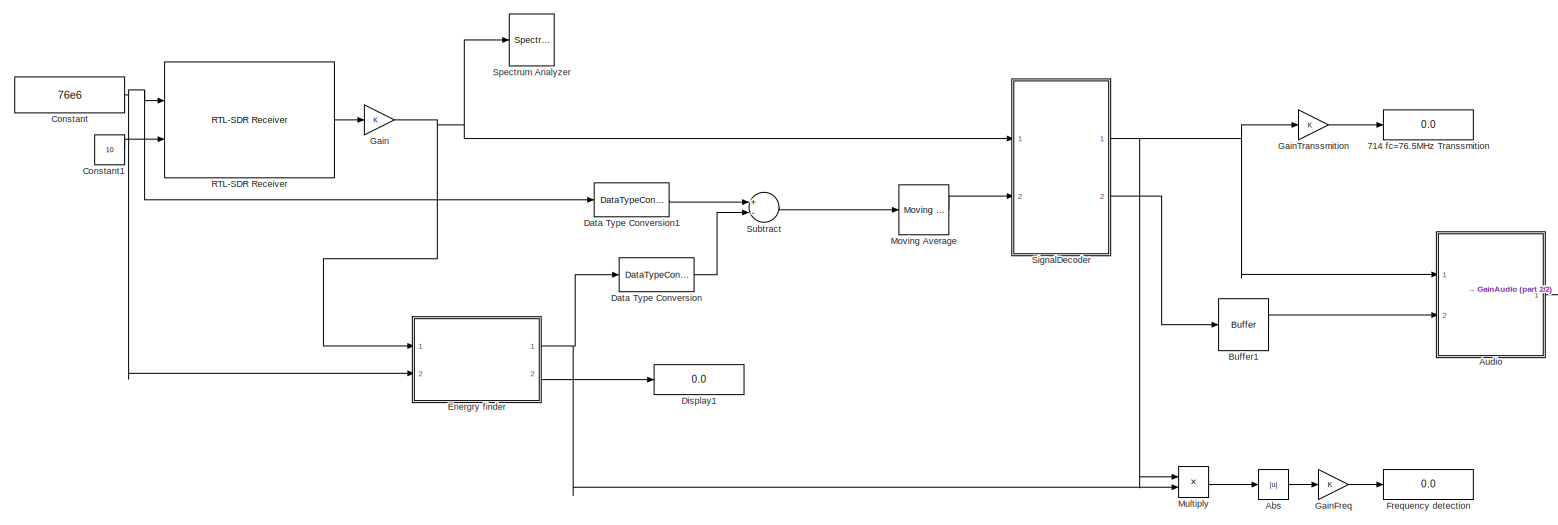
[diagram: root canvas - part 1/2, most of the canvas]
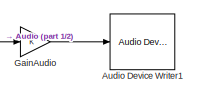
[diagram: root canvas - part 2/2, middle right region]
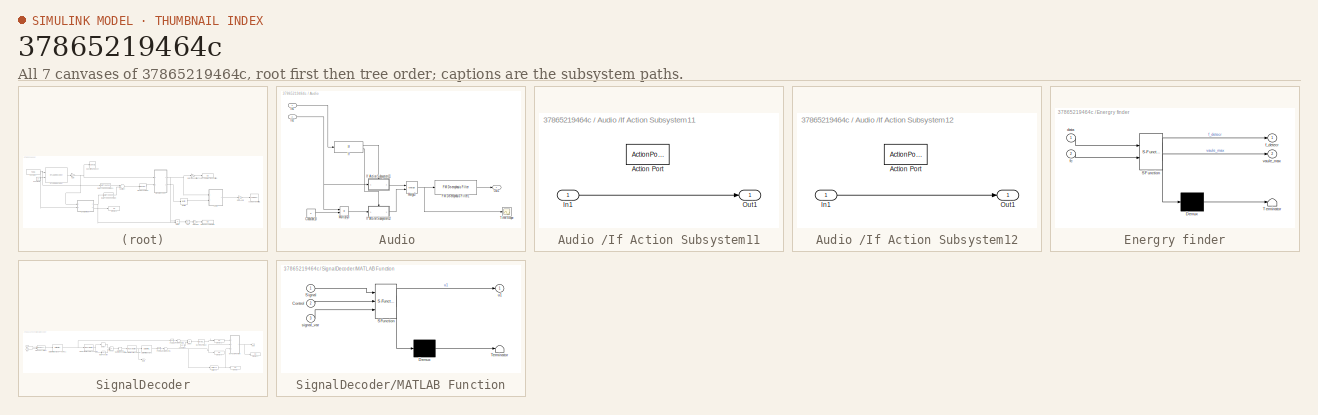
[diagram: thumbnail index - all 7 canvases of the model, root first then tree order]
MODEL slx_37865219464c
KIND model
CONFIG AbsTol = auto
CONFIG EnableMultiTasking = off
CONFIG FixedStep = auto
CONFIG MaxStep = auto
CONFIG MinStep = auto
CONFIG RelTol = 1e-3
CONFIG SampleTimeConstraint = Unconstrained
CONFIG Solver = VariableStepAuto
CONFIG SolverName = VariableStepAuto
CONFIG StartFcn = localAddEventListener
CONFIG StartTime = 0.0
CONFIG StopTime = inf
BLOCK [Display] 714 fc=76.5MHz Transsmition
  Decimation = 1
  Ports = [1]
BLOCK [Abs] Abs
  SaturateOnIntegerOverflow = off
BLOCK [SubSystem] Audio 
  Commented = on
  Ports = [2, 1]
  RequestExecContextInheritance = off
BLOCK [Constant] Audio /Constant10
  OutDataTypeStr = single
  Value = 0
BLOCK [Reference] Audio /FM De-emphasis Filter1  REF=rtlsdr_book_library/FM Demod Tools/FM De-emphasis Filter  (lib defined in slx_12414fe83126, slx_a1558d2e1022)
  Ports = [1, 1]
  SourceBlock = rtlsdr_book_library/FM Demod Tools/FM De-emphasis Filter
  SourceProductName = RTL-SDR Book Library
BLOCK [If] Audio /If
  IfExpression = u1 == 1
  Ports = [1, 2]
BLOCK [SubSystem] Audio /If Action Subsystem11
  Ports = [1, 1, 0, 0, 0, 0, 0, 1]
  RequestExecContextInheritance = off
  TreatAsAtomicUnit = on
BLOCK [ActionPort] Audio /If Action Subsystem11/Action Port
  ActionType = then
BLOCK [Inport] Audio /If Action Subsystem11/In1
  IconDisplay = Port number
BLOCK [Outport] Audio /If Action Subsystem11/Out1
  IconDisplay = Port number
BLOCK [SubSystem] Audio /If Action Subsystem12
  Ports = [1, 1, 0, 0, 0, 0, 0, 1]
  RequestExecContextInheritance = off
  TreatAsAtomicUnit = on
BLOCK [ActionPort] Audio /If Action Subsystem12/Action Port
  ActionType = else
BLOCK [Inport] Audio /If Action Subsystem12/In1
  IconDisplay = Port number
BLOCK [Outport] Audio /If Action Subsystem12/Out1
  IconDisplay = Port number
BLOCK [Inport] Audio /In1
  IconDisplay = Port number
BLOCK [Inport] Audio /In2
  IconDisplay = Port number
  Port = 2
BLOCK [Merge] Audio /Merge5
  Ports = [2, 1]
BLOCK [Product] Audio /Multiply3
  InputSameDT = off
  OutDataTypeStr = Inherit: Inherit via internal rule
  Ports = [2, 1]
  RndMeth = Floor
  SaturateOnIntegerOverflow = off
BLOCK [Outport] Audio /Out1
  IconDisplay = Port number
BLOCK [Scope] Audio /Time Scope
  Commented = on
  DefaultConfigurationName = spbscopes.TimeScopeBlockCfg
  Floating = off
  NumInputPorts = 1
  Ports = [1]
  ScopeSpecificationString = spbscopes.TimeScopeBlockCfg('CurrentConfiguration', extmgr.ConfigurationSet(extmgr.Configuration('Core','General UI',true,'FigureColor',[0.156862745098039 0.156862745098039 0.156862745098039]),extmgr.Configuration('Core','Source UI',true),extmgr.Configuration('Sources','WiredSimulink',true),extmgr.Configuration('Visuals','Time Domain',true,'DisplayPropertyDefaults',struct('MinYLimReal','-3.60653',...<+1539ch>
  UserDataPersistent = on
BLOCK [Reference] Audio Device Writer1  REF=dspsnks4/Audio Device
Writer
  Commented = on
  Ports = [1]
  SourceBlock = dspsnks4/Audio Device\nWriter
  SourceProductBaseCode = DS
  SourceProductName = DSP System Toolbox
  SourceType = Audio Device Writer
BLOCK [Buffer] Buffer1
  N = 80
  OutputFrames = off
BLOCK [Constant] Constant
  Value = 76e6
BLOCK [Constant] Constant1
  Value = 10
BLOCK [DataTypeConversion] Data Type Conversion
  OutDataTypeStr = single
  RndMeth = Floor
  SaturateOnIntegerOverflow = off
BLOCK [DataTypeConversion] Data Type Conversion1
  OutDataTypeStr = single
  RndMeth = Floor
  SaturateOnIntegerOverflow = off
BLOCK [Display] Display1
  Decimation = 1
  Ports = [1]
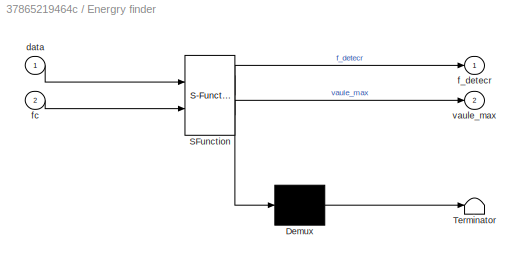
BLOCK [SubSystem] Energry finder
  ErrorFcn = Stateflow.Translate.translate
  PermitHierarchicalResolution = ExplicitOnly
  Ports = [2, 2]
  RequestExecContextInheritance = off
  SFBlockType = MATLAB Function
  TreatAsAtomicUnit = on
BLOCK [Demux] Energry finder/ Demux 
  Outputs = 1
  Ports = [1, 1]
BLOCK [S-Function] Energry finder/ SFunction 
  EnableBusSupport = on
  FunctionName = sf_sfun
  PortCounts = [2 3]
  Ports = [2, 3]
  SFcnIsStateOwnerBlock = off
  SFunctionDeploymentMode = off
  Tag = Stateflow S-Function signal_detector_V2 2
BLOCK [Terminator] Energry finder/ Terminator 
BLOCK [Inport] Energry finder/data
  IconDisplay = Port number
BLOCK [Outport] Energry finder/f_detecr
  IconDisplay = Port number
BLOCK [Inport] Energry finder/fc
  IconDisplay = Port number
  Port = 2
BLOCK [Outport] Energry finder/vaule_max
  IconDisplay = Port number
  Port = 2
BLOCK [Display] Frequency detection
  Decimation = 1
  Ports = [1]
BLOCK [Gain] Gain
  OutDataTypeStr = Inherit: Inherit via internal rule
  ParamDataTypeStr = Inherit: Inherit via internal rule
  SaturateOnIntegerOverflow = off
BLOCK [Gain] GainAudio
  Commented = on
  OutDataTypeStr = Inherit: Inherit via internal rule
  ParamDataTypeStr = Inherit: Inherit via internal rule
  SaturateOnIntegerOverflow = off
BLOCK [Gain] GainFreq
  OutDataTypeStr = Inherit: Inherit via internal rule
  ParamDataTypeStr = Inherit: Inherit via internal rule
  SaturateOnIntegerOverflow = off
BLOCK [Gain] GainTranssmition
  OutDataTypeStr = Inherit: Inherit via internal rule
  ParamDataTypeStr = Inherit: Inherit via internal rule
  SaturateOnIntegerOverflow = off
BLOCK [Reference] Moving Average  REF=dspstat3/Moving
Average
  Ports = [1, 1]
  SourceBlock = dspstat3/Moving\nAverage
  SourceProductBaseCode = DS
  SourceProductName = DSP System Toolbox
  SourceType = dsp.simulink.MovingAverage
BLOCK [Product] Multiply
  InputSameDT = off
  OutDataTypeStr = Inherit: Inherit via internal rule
  Ports = [2, 1]
  RndMeth = Floor
  SaturateOnIntegerOverflow = off
BLOCK [Reference] RTL-SDR Receiver  REF=sdrrlib/RTL-SDR
Receiver
  Ports = [2, 1]
  SourceBlock = sdrrlib/RTL-SDR\nReceiver
  SourceProductBaseCode = RTLSDR
  SourceProductName = Communications System Toolbox Support Package for RTL-SDR Radio
  SourceType = RTL-SDR Receiver
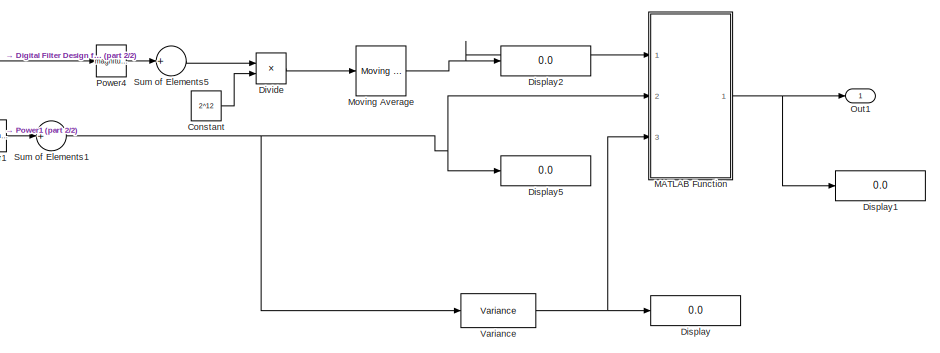
[diagram: SignalDecoder - part 1/2, right side, full height]
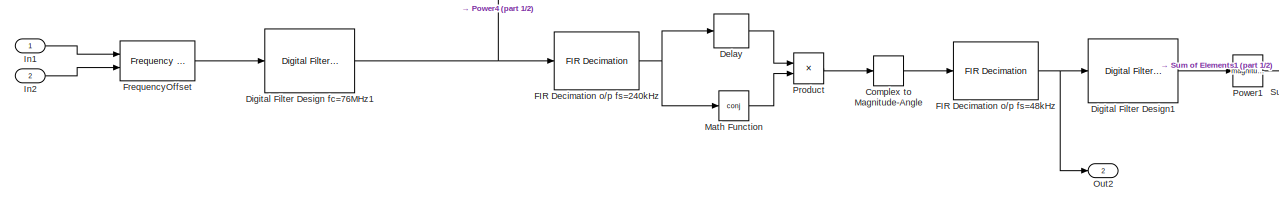
[diagram: SignalDecoder - part 2/2, middle left region]
BLOCK [SubSystem] SignalDecoder
  Ports = [2, 2]
  RequestExecContextInheritance = off
BLOCK [ComplexToMagnitudeAngle] SignalDecoder/Complex to Magnitude-Angle
  Output = Angle
  Ports = [1, 1]
BLOCK [Constant] SignalDecoder/Constant
  Value = 2^12
BLOCK [Delay] SignalDecoder/Delay
  DelayLength = 1
  InputPortMap = u0
  InputProcessing = Columns as channels (frame based)
  Ports = [1, 1]
BLOCK [Reference] SignalDecoder/Digital Filter Design fc=76MHz1  REF=dsparch4/Digital
Filter Design
  Ports = [1, 1]
  SourceBlock = dsparch4/Digital\nFilter Design
  SourceProductBaseCode = DS
  SourceProductName = DSP System Toolbox
  SourceType = Digital Filter Design
  UserDataPersistent = on
BLOCK [Reference] SignalDecoder/Digital Filter Design1  REF=dsparch4/Digital
Filter Design
  Ports = [1, 1]
  SourceBlock = dsparch4/Digital\nFilter Design
  SourceProductBaseCode = DS
  SourceProductName = DSP System Toolbox
  SourceType = Digital Filter Design
  UserDataPersistent = on
BLOCK [Display] SignalDecoder/Display
  Decimation = 1
  Ports = [1]
BLOCK [Display] SignalDecoder/Display1
  Decimation = 1
  Ports = [1]
BLOCK [Display] SignalDecoder/Display2
  Decimation = 1
  Ports = [1]
BLOCK [Display] SignalDecoder/Display5
  Decimation = 1
  Ports = [1]
BLOCK [Product] SignalDecoder/Divide
  InputSameDT = off
  Inputs = */
  OutDataTypeStr = Inherit: Inherit via internal rule
  Ports = [2, 1]
  RndMeth = Floor
  SaturateOnIntegerOverflow = off
BLOCK [Reference] SignalDecoder/FIR Decimation o//p fs=240kHz  REF=dspmlti4/FIR
Decimation
  Ports = [1, 1]
  SourceBlock = dspmlti4/FIR\nDecimation
  SourceProductBaseCode = DS
  SourceProductName = DSP System Toolbox
  SourceType = FIR Decimation
  UserDataPersistent = on
BLOCK [Reference] SignalDecoder/FIR Decimation o//p fs=48kHz  REF=dspmlti4/FIR
Decimation
  Ports = [1, 1]
  SourceBlock = dspmlti4/FIR\nDecimation
  SourceProductBaseCode = DS
  SourceProductName = DSP System Toolbox
  SourceType = FIR Decimation
  UserDataPersistent = on
BLOCK [Reference] SignalDecoder/FrequencyOffset  REF=commrflib2/Phase//
Frequency
Offset
  Ports = [2, 1]
  SourceBlock = commrflib2/Phase//\nFrequency\nOffset
  SourceProductBaseCode = CM
  SourceProductName = Communications System Toolbox
  SourceType = Phase/Frequency Offset
BLOCK [Inport] SignalDecoder/In1
  IconDisplay = Port number
BLOCK [Inport] SignalDecoder/In2
  IconDisplay = Port number
  Port = 2
BLOCK [SubSystem] SignalDecoder/MATLAB Function
  ErrorFcn = Stateflow.Translate.translate
  PermitHierarchicalResolution = ExplicitOnly
  Ports = [3, 1]
  RequestExecContextInheritance = off
  SFBlockType = MATLAB Function
  TreatAsAtomicUnit = on
BLOCK [Demux] SignalDecoder/MATLAB Function/ Demux 
  Outputs = 1
  Ports = [1, 1]
BLOCK [S-Function] SignalDecoder/MATLAB Function/ SFunction 
  EnableBusSupport = on
  FunctionName = sf_sfun
  PortCounts = [3 2]
  Ports = [3, 2]
  SFcnIsStateOwnerBlock = off
  SFunctionDeploymentMode = off
  Tag = Stateflow S-Function signal_detector_V2 3
BLOCK [Terminator] SignalDecoder/MATLAB Function/ Terminator 
BLOCK [Inport] SignalDecoder/MATLAB Function/Control
  IconDisplay = Port number
  Port = 2
BLOCK [Inport] SignalDecoder/MATLAB Function/Signal
  IconDisplay = Port number
BLOCK [Inport] SignalDecoder/MATLAB Function/signal_var
  IconDisplay = Port number
  Port = 3
BLOCK [Outport] SignalDecoder/MATLAB Function/u1
  IconDisplay = Port number
BLOCK [Math] SignalDecoder/Math Function
  Operator = conj
  Ports = [1, 1]
BLOCK [Reference] SignalDecoder/Moving Average  REF=dspstat3/Moving
Average
  Ports = [1, 1]
  SourceBlock = dspstat3/Moving\nAverage
  SourceProductBaseCode = DS
  SourceProductName = DSP System Toolbox
  SourceType = dsp.simulink.MovingAverage
BLOCK [Outport] SignalDecoder/Out1
  IconDisplay = Port number
BLOCK [Outport] SignalDecoder/Out2
  IconDisplay = Port number
  Port = 2
BLOCK [Math] SignalDecoder/Power1
  Operator = magnitude^2
  Ports = [1, 1]
BLOCK [Math] SignalDecoder/Power4
  Operator = magnitude^2
  Ports = [1, 1]
BLOCK [Product] SignalDecoder/Product
  InputSameDT = off
  OutDataTypeStr = Inherit: Inherit via internal rule
  Ports = [2, 1]
  RndMeth = Floor
  SaturateOnIntegerOverflow = off
BLOCK [Sum] SignalDecoder/Sum of Elements1
  InputSameDT = off
  Inputs = +
  OutDataTypeStr = Inherit: Inherit via internal rule
  Ports = [1, 1]
  SaturateOnIntegerOverflow = off
BLOCK [Sum] SignalDecoder/Sum of Elements5
  InputSameDT = off
  Inputs = +
  OutDataTypeStr = Inherit: Inherit via internal rule
  Ports = [1, 1]
  SaturateOnIntegerOverflow = off
BLOCK [Reference] SignalDecoder/Variance  REF=dspstat3/Variance
  Ports = [1, 1]
  SourceBlock = dspstat3/Variance
  SourceProductBaseCode = DS
  SourceProductName = DSP System Toolbox
  SourceType = Variance
  UserDataPersistent = on
BLOCK [SpectrumAnalyzer] Spectrum Analyzer
  Commented = on
  Ports = [1]
  ScopeSpecificationString = spbscopes.SpectrumAnalyzerBlockCfg('CurrentConfiguration', extmgr.ConfigurationSet(extmgr.Configuration('Core','General UI',true),extmgr.Configuration('Core','Source UI',true),extmgr.Configuration('Sources','WiredSimulink',true),extmgr.Configuration('Visuals','Spectrum',true,'AxesProperties',struct('Color',{[0 0 0],[0 0 0]},'XColor',{[0.686274509803922 0.686274509803922 0.686274509803922],[0.68627...<+1748ch>
BLOCK [Sum] Subtract
  InputSameDT = off
  Inputs = +-
  OutDataTypeStr = Inherit: Inherit via internal rule
  Ports = [2, 1]
  SaturateOnIntegerOverflow = off
LINE Abs:1 -> GainFreq:1
LINE Audio /Constant10:1 -> Audio /Multiply3:2
LINE Audio /FM De-emphasis Filter1:1 -> Audio /Out1:1
LINE Audio /If Action Subsystem11/In1:1 -> Audio /If Action Subsystem11/Out1:1
LINE Audio /If Action Subsystem11:1 -> Audio /Merge5:1
LINE Audio /If Action Subsystem12/In1:1 -> Audio /If Action Subsystem12/Out1:1
LINE Audio /If Action Subsystem12:1 -> Audio /Merge5:2
LINE Audio /If:1 -> Audio /If Action Subsystem11:ifaction
LINE Audio /If:2 -> Audio /If Action Subsystem12:ifaction
LINE Audio /In1:1 -> Audio /If:1
NET Audio /In2:1 -> Audio /If Action Subsystem11:1, Audio /Multiply3:1
NET Audio /Merge5:1 -> Audio /FM De-emphasis Filter1:1, Audio /Time Scope:1
LINE Audio /Multiply3:1 -> Audio /If Action Subsystem12:1
LINE Audio :1 -> GainAudio:1
LINE Buffer1:1 -> Audio :2
LINE Constant1:1 -> RTL-SDR Receiver:2
NET Constant:1 -> Data Type Conversion1:1, Energry finder:2, RTL-SDR Receiver:1
LINE Data Type Conversion1:1 -> Subtract:1
LINE Data Type Conversion:1 -> Subtract:2
NET Energry finder:1 -> Data Type Conversion:1, Multiply:2
LINE Energry finder:2 -> Display1:1
NET Gain:1 -> Energry finder:1, SignalDecoder:1, Spectrum Analyzer:1
LINE GainAudio:1 -> Audio Device Writer1:1
LINE GainFreq:1 -> Frequency detection:1
LINE GainTranssmition:1 -> 714 fc=76.5MHz Transsmition:1
LINE Moving Average:1 -> SignalDecoder:2
LINE Multiply:1 -> Abs:1
LINE RTL-SDR Receiver:1 -> Gain:1
LINE SignalDecoder/Complex to Magnitude-Angle:1 -> SignalDecoder/FIR Decimation o//p fs=48kHz:1
LINE SignalDecoder/Constant:1 -> SignalDecoder/Divide:2
LINE SignalDecoder/Delay:1 -> SignalDecoder/Product:1
NET SignalDecoder/Digital Filter Design fc=76MHz1:1 -> SignalDecoder/FIR Decimation o//p fs=240kHz:1, SignalDecoder/Power4:1
LINE SignalDecoder/Digital Filter Design1:1 -> SignalDecoder/Power1:1
LINE SignalDecoder/Divide:1 -> SignalDecoder/Moving Average:1
NET SignalDecoder/FIR Decimation o//p fs=240kHz:1 -> SignalDecoder/Delay:1, SignalDecoder/Math Function:1
NET SignalDecoder/FIR Decimation o//p fs=48kHz:1 -> SignalDecoder/Digital Filter Design1:1, SignalDecoder/Out2:1
LINE SignalDecoder/FrequencyOffset:1 -> SignalDecoder/Digital Filter Design fc=76MHz1:1
LINE SignalDecoder/In1:1 -> SignalDecoder/FrequencyOffset:1
LINE SignalDecoder/In2:1 -> SignalDecoder/FrequencyOffset:2
NET SignalDecoder/MATLAB Function:1 -> SignalDecoder/Display1:1, SignalDecoder/Out1:1
LINE SignalDecoder/Math Function:1 -> SignalDecoder/Product:2
NET SignalDecoder/Moving Average:1 -> SignalDecoder/Display2:1, SignalDecoder/MATLAB Function:1
LINE SignalDecoder/Power1:1 -> SignalDecoder/Sum of Elements1:1
LINE SignalDecoder/Power4:1 -> SignalDecoder/Sum of Elements5:1
LINE SignalDecoder/Product:1 -> SignalDecoder/Complex to Magnitude-Angle:1
NET SignalDecoder/Sum of Elements1:1 -> SignalDecoder/Display5:1, SignalDecoder/MATLAB Function:2, SignalDecoder/Variance:1
LINE SignalDecoder/Sum of Elements5:1 -> SignalDecoder/Divide:1
NET SignalDecoder/Variance:1 -> SignalDecoder/Display:1, SignalDecoder/MATLAB Function:3
NET SignalDecoder:1 -> Audio :1, GainTranssmition:1, Multiply:1
LINE SignalDecoder:2 -> Buffer1:1
LINE Subtract:1 -> Moving Average:1
note: NET lines group one-source signal fan-out (src -> all destinations, sorted); 1:1 wires keep LINE
CHART Energry finder states=1 transitions=1
  STATE_LABEL 'eML_blk_kernel()'
  STATE_LABEL 'SCRIPT:\nfunction [f_detecr,vaule_max] = fcn(data,fc)\n\n\n% fc = 76e6;\nfs = 2.4e6;\ndata_points = 2^12;\n\n% signal = data.Data(10,:);\nsignal = data;\nfreq = linspace(-fs/2+fc,fs/2+fc,data_points);\npower = (fftshift(fft(signal))/length(signal));\n\n\n[vaule_max,index_max] = max(abs(power));\nf_detecr = freq(index_max);\n\n\n\n'
CHART SignalDecoder/MATLAB Function states=1 transitions=1
  STATE_LABEL 'eML_blk_kernel()'
  STATE_LABEL 'SCRIPT:\nfunction u1   = fcn(Signal,Control,signal_var)\n\nthreshold_signal = 0.03;\nthreshold_control = 0.1;\nthreshold_signal_var = 150;\n\n\n\nif Signal > threshold_signal && Control>threshold_control \n    u1 = 1;\nelseif Signal > threshold_signal \n    u1=-1;\nelse\n    u1 = 0;\nend\n\n\n'
